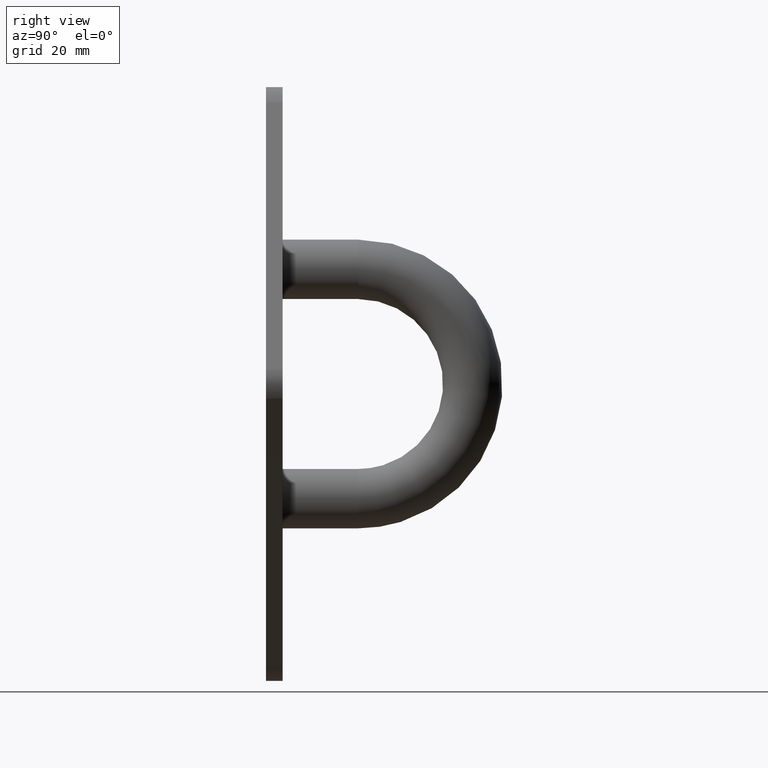
[diagram: clean part render]
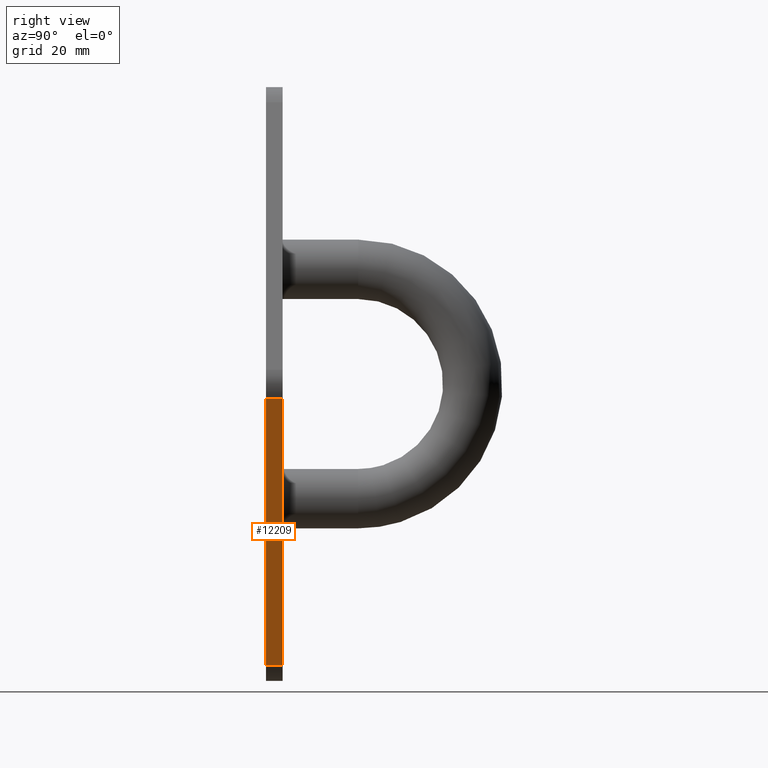
[diagram: same view with one face highlighted and labeled with its STEP entity id]
A machine part, right view. The second image highlights one B-rep face of the part: STEP entity #12209.
In plain terms, the highlighted planar face has unit normal (-0.8742, 0, 0.4856).
Its self-contained STEP definition (entity closure, byte-faithful):
#40 = CARTESIAN_POINT ( 'NONE',  ( 4.370786380607743382, 2.799999999999999822, -47.42821465589310037 ) ) ;
#77 = DIRECTION ( 'NONE',  ( 0.4856429311786297776, 0.000000000000000000, 0.8741572761215390397 ) ) ;
#583 = VERTEX_POINT ( 'NONE', #2312 ) ;
#756 = DIRECTION ( 'NONE',  ( -0.000000000000000000, -1.000000000000000000, -0.000000000000000000 ) ) ;
#956 = AXIS2_PLACEMENT_3D ( 'NONE', #5113, #9376, #77 ) ;
#1472 = VERTEX_POINT ( 'NONE', #12963 ) ;
#2312 = CARTESIAN_POINT ( 'NONE',  ( 4.370786380607743382, 0.000000000000000000, -47.42821465589310037 ) ) ;
#2609 = VECTOR ( 'NONE', #4948, 1000.000000000000114 ) ;
#2826 = EDGE_CURVE ( 'NONE', #5083, #583, #9125, .T. ) ;
#3712 = LINE ( 'NONE', #6994, #2609 ) ;
#3719 = EDGE_CURVE ( 'NONE', #12822, #583, #3712, .T. ) ;
#3929 = VECTOR ( 'NONE', #756, 1000.000000000000000 ) ;
#4948 = DIRECTION ( 'NONE',  ( -0.4856429311786298331, 0.000000000000000000, -0.8741572761215390397 ) ) ;
#5042 = EDGE_LOOP ( 'NONE', ( #6370, #8510, #11272, #7176 ) ) ;
#5083 = VERTEX_POINT ( 'NONE', #40 ) ;
#5113 = CARTESIAN_POINT ( 'NONE',  ( 29.37078638060770430, 2.799999999999999822, -2.428214655893143892 ) ) ;
#5275 = CARTESIAN_POINT ( 'NONE',  ( 4.370786380607743382, 2.799999999999999822, -47.42821465589310037 ) ) ;
#5927 = FACE_OUTER_BOUND ( 'NONE', #5042, .T. ) ;
#6370 = ORIENTED_EDGE ( 'NONE', *, *, #3719, .T. ) ;
#6994 = CARTESIAN_POINT ( 'NONE',  ( 29.37078638060770430, 0.000000000000000000, -2.428214655893143892 ) ) ;
#7066 = VECTOR ( 'NONE', #12810, 1000.000000000000114 ) ;
#7094 = EDGE_CURVE ( 'NONE', #1472, #5083, #10896, .T. ) ;
#7176 = ORIENTED_EDGE ( 'NONE', *, *, #7898, .T. ) ;
#7381 = DIRECTION ( 'NONE',  ( -0.000000000000000000, -1.000000000000000000, -0.000000000000000000 ) ) ;
#7657 = CARTESIAN_POINT ( 'NONE',  ( 29.37078638060770430, 2.799999999999999822, -2.428214655893143892 ) ) ;
#7898 = EDGE_CURVE ( 'NONE', #1472, #12822, #8516, .T. ) ;
#8510 = ORIENTED_EDGE ( 'NONE', *, *, #2826, .F. ) ;
#8516 = LINE ( 'NONE', #10954, #3929 ) ;
#9125 = LINE ( 'NONE', #5275, #12309 ) ;
#9177 = PLANE ( 'NONE',  #956 ) ;
#9376 = DIRECTION ( 'NONE',  ( -0.8741572761215390397, 0.000000000000000000, 0.4856429311786297776 ) ) ;
#10744 = CARTESIAN_POINT ( 'NONE',  ( 29.37078638060770430, 0.000000000000000000, -2.428214655893143892 ) ) ;
#10896 = LINE ( 'NONE', #7657, #7066 ) ;
#10954 = CARTESIAN_POINT ( 'NONE',  ( 29.37078638060770430, 2.799999999999999822, -2.428214655893143892 ) ) ;
#11272 = ORIENTED_EDGE ( 'NONE', *, *, #7094, .F. ) ;
#12209 = ADVANCED_FACE ( 'NONE', ( #5927 ), #9177, .F. ) ;
#12309 = VECTOR ( 'NONE', #7381, 1000.000000000000000 ) ;
#12810 = DIRECTION ( 'NONE',  ( -0.4856429311786298331, 0.000000000000000000, -0.8741572761215390397 ) ) ;
#12822 = VERTEX_POINT ( 'NONE', #10744 ) ;
#12963 = CARTESIAN_POINT ( 'NONE',  ( 29.37078638060770430, 2.799999999999999822, -2.428214655893143892 ) ) ;